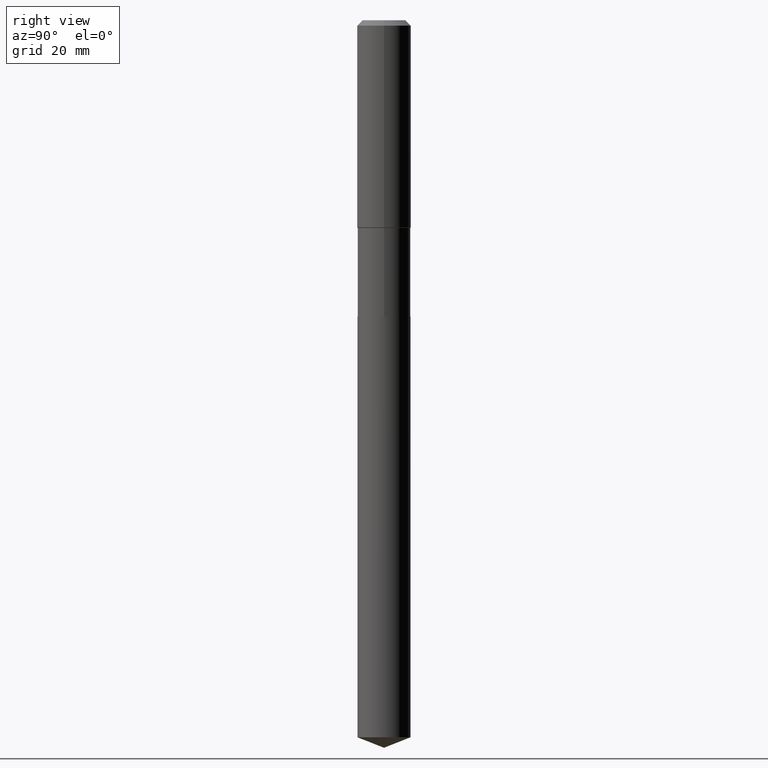
[diagram: clean part render]
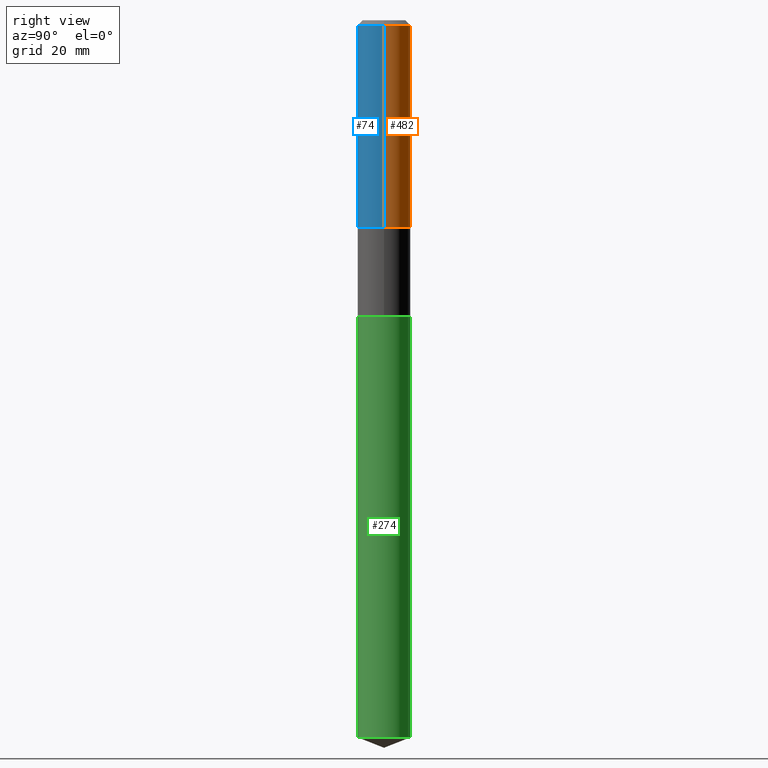
[diagram: same view with three faces highlighted in distinct colors, each labeled with its STEP entity id]
A machine part, right view with three faces highlighted in distinct colors.
Their STEP definitions:

[orange] entity #482 — the highlighted cylindrical surface (edge-blend (fillet) strip) has radius 5.9995 mm, axis along (-0, 0, 1).
#5 = DIRECTION ( 'NONE',  ( -2.445468806185136597E-29, 3.491481338843145583E-15, 1.000000000000000000 ) ) ;
#6 = VECTOR ( 'NONE', #352, 39.37007874015748143 ) ;
#15 = CIRCLE ( 'NONE', #155, 0.2362000000000000210 ) ;
#22 = VECTOR ( 'NONE', #143, 39.37007874015748143 ) ;
#52 = EDGE_CURVE ( 'NONE', #460, #81, #174, .T. ) ;
#54 = CARTESIAN_POINT ( 'NONE',  ( 0.000000000000000000, 0.000000000000000000, 0.000000000000000000 ) ) ;
#63 = ORIENTED_EDGE ( 'NONE', *, *, #52, .T. ) ;
#76 = ORIENTED_EDGE ( 'NONE', *, *, #219, .F. ) ;
#81 = VERTEX_POINT ( 'NONE', #156 ) ;
#93 = CARTESIAN_POINT ( 'NONE',  ( 1.155239464041866207E-30, -1.649375784469512845E-16, -0.04724000000000030952 ) ) ;
#143 = DIRECTION ( 'NONE',  ( -2.445468806185136877E-29, 3.491481338843145188E-15, 1.000000000000000000 ) ) ;
#155 = AXIS2_PLACEMENT_3D ( 'NONE', #93, #237, #307 ) ;
#156 = CARTESIAN_POINT ( 'NONE',  ( -0.2362000000000002431, -4.662577317607680515E-15, -1.816100000000000714 ) ) ;
#157 = ORIENTED_EDGE ( 'NONE', *, *, #288, .T. ) ;
#158 = ORIENTED_EDGE ( 'NONE', *, *, #414, .F. ) ;
#159 = FACE_OUTER_BOUND ( 'NONE', #248, .T. ) ;
#164 = DIRECTION ( 'NONE',  ( 1.000000000000000000, -6.982962677686265922E-15, 0.000000000000000000 ) ) ;
#171 = AXIS2_PLACEMENT_3D ( 'NONE', #54, #432, #392 ) ;
#174 = CIRCLE ( 'NONE', #385, 0.2362000000000002431 ) ;
#190 = CARTESIAN_POINT ( 'NONE',  ( 4.441215898912827916E-29, -6.340879259473039276E-15, -1.816100000000000714 ) ) ;
#192 = VERTEX_POINT ( 'NONE', #240 ) ;
#219 = EDGE_CURVE ( 'NONE', #192, #419, #15, .T. ) ;
#237 = DIRECTION ( 'NONE',  ( -2.445468806185136597E-29, 3.491481338843145583E-15, 1.000000000000000000 ) ) ;
#240 = CARTESIAN_POINT ( 'NONE',  ( 0.2362000000000000210, -1.814313362916447834E-15, -0.04724000000000030952 ) ) ;
#248 = EDGE_LOOP ( 'NONE', ( #63, #157, #76, #158 ) ) ;
#284 = CARTESIAN_POINT ( 'NONE',  ( -0.2362000000000001321, 1.678301941865357577E-15, -1.161852468318209457E-29 ) ) ;
#288 = EDGE_CURVE ( 'NONE', #81, #419, #481, .T. ) ;
#307 = DIRECTION ( 'NONE',  ( 1.000000000000000000, -6.982962677686267499E-15, 0.000000000000000000 ) ) ;
#331 = CARTESIAN_POINT ( 'NONE',  ( 0.2362000000000002431, -7.990255043942538167E-15, -1.816100000000000714 ) ) ;
#352 = DIRECTION ( 'NONE',  ( -2.445468806185136877E-29, 3.491481338843145188E-15, 1.000000000000000000 ) ) ;
#354 = CARTESIAN_POINT ( 'NONE',  ( 0.2362000000000001321, -1.649375784469497117E-15, 1.151752954443000789E-29 ) ) ;
#378 = CYLINDRICAL_SURFACE ( 'NONE', #171, 0.2362000000000001321 ) ;
#385 = AXIS2_PLACEMENT_3D ( 'NONE', #190, #5, #164 ) ;
#392 = DIRECTION ( 'NONE',  ( 1.000000000000000000, -6.982962677686266711E-15, 4.876176775795936353E-29 ) ) ;
#414 = EDGE_CURVE ( 'NONE', #460, #192, #450, .T. ) ;
#419 = VERTEX_POINT ( 'NONE', #474 ) ;
#432 = DIRECTION ( 'NONE',  ( -2.445468806185136597E-29, 3.491481338843145583E-15, 1.000000000000000000 ) ) ;
#450 = LINE ( 'NONE', #354, #6 ) ;
#460 = VERTEX_POINT ( 'NONE', #331 ) ;
#474 = CARTESIAN_POINT ( 'NONE',  ( -0.2362000000000000210, -1.574606477094637715E-15, -0.04724000000000030952 ) ) ;
#481 = LINE ( 'NONE', #284, #22 ) ;
#482 = ADVANCED_FACE ( 'NONE', ( #159 ), #378, .T. ) ;

[blue] entity #74 — the highlighted cylindrical surface (edge-blend (fillet) strip) has radius 5.9995 mm, axis along (-0, 0, 1).
#6 = VECTOR ( 'NONE', #352, 39.37007874015748143 ) ;
#14 = ORIENTED_EDGE ( 'NONE', *, *, #288, .F. ) ;
#22 = VECTOR ( 'NONE', #143, 39.37007874015748143 ) ;
#35 = EDGE_LOOP ( 'NONE', ( #14, #480, #413, #462 ) ) ;
#46 = DIRECTION ( 'NONE',  ( -2.445468806185136597E-29, 3.491481338843145583E-15, 1.000000000000000000 ) ) ;
#67 = CARTESIAN_POINT ( 'NONE',  ( 1.155239464041866207E-30, -1.649375784469512845E-16, -0.04724000000000030952 ) ) ;
#74 = ADVANCED_FACE ( 'NONE', ( #229 ), #124, .T. ) ;
#81 = VERTEX_POINT ( 'NONE', #156 ) ;
#84 = CARTESIAN_POINT ( 'NONE',  ( 0.000000000000000000, 0.000000000000000000, 0.000000000000000000 ) ) ;
#119 = CIRCLE ( 'NONE', #397, 0.2362000000000000210 ) ;
#122 = DIRECTION ( 'NONE',  ( 1.000000000000000000, -6.982962677686267499E-15, 0.000000000000000000 ) ) ;
#124 = CYLINDRICAL_SURFACE ( 'NONE', #464, 0.2362000000000001321 ) ;
#134 = EDGE_CURVE ( 'NONE', #81, #460, #370, .T. ) ;
#143 = DIRECTION ( 'NONE',  ( -2.445468806185136877E-29, 3.491481338843145188E-15, 1.000000000000000000 ) ) ;
#156 = CARTESIAN_POINT ( 'NONE',  ( -0.2362000000000002431, -4.662577317607680515E-15, -1.816100000000000714 ) ) ;
#170 = AXIS2_PLACEMENT_3D ( 'NONE', #260, #261, #425 ) ;
#192 = VERTEX_POINT ( 'NONE', #240 ) ;
#229 = FACE_OUTER_BOUND ( 'NONE', #35, .T. ) ;
#240 = CARTESIAN_POINT ( 'NONE',  ( 0.2362000000000000210, -1.814313362916447834E-15, -0.04724000000000030952 ) ) ;
#260 = CARTESIAN_POINT ( 'NONE',  ( 4.441215898912827916E-29, -6.340879259473039276E-15, -1.816100000000000714 ) ) ;
#261 = DIRECTION ( 'NONE',  ( -2.445468806185136597E-29, 3.491481338843145583E-15, 1.000000000000000000 ) ) ;
#284 = CARTESIAN_POINT ( 'NONE',  ( -0.2362000000000001321, 1.678301941865357577E-15, -1.161852468318209457E-29 ) ) ;
#288 = EDGE_CURVE ( 'NONE', #81, #419, #481, .T. ) ;
#290 = DIRECTION ( 'NONE',  ( -2.445468806185136597E-29, 3.491481338843145583E-15, 1.000000000000000000 ) ) ;
#331 = CARTESIAN_POINT ( 'NONE',  ( 0.2362000000000002431, -7.990255043942538167E-15, -1.816100000000000714 ) ) ;
#334 = DIRECTION ( 'NONE',  ( 1.000000000000000000, -6.982962677686266711E-15, 4.876176775795936353E-29 ) ) ;
#352 = DIRECTION ( 'NONE',  ( -2.445468806185136877E-29, 3.491481338843145188E-15, 1.000000000000000000 ) ) ;
#354 = CARTESIAN_POINT ( 'NONE',  ( 0.2362000000000001321, -1.649375784469497117E-15, 1.151752954443000789E-29 ) ) ;
#370 = CIRCLE ( 'NONE', #170, 0.2362000000000002431 ) ;
#397 = AXIS2_PLACEMENT_3D ( 'NONE', #67, #46, #122 ) ;
#413 = ORIENTED_EDGE ( 'NONE', *, *, #414, .T. ) ;
#414 = EDGE_CURVE ( 'NONE', #460, #192, #450, .T. ) ;
#419 = VERTEX_POINT ( 'NONE', #474 ) ;
#425 = DIRECTION ( 'NONE',  ( 1.000000000000000000, -6.982962677686265922E-15, 0.000000000000000000 ) ) ;
#450 = LINE ( 'NONE', #354, #6 ) ;
#454 = EDGE_CURVE ( 'NONE', #419, #192, #119, .T. ) ;
#460 = VERTEX_POINT ( 'NONE', #331 ) ;
#462 = ORIENTED_EDGE ( 'NONE', *, *, #454, .F. ) ;
#464 = AXIS2_PLACEMENT_3D ( 'NONE', #84, #290, #334 ) ;
#474 = CARTESIAN_POINT ( 'NONE',  ( -0.2362000000000000210, -1.574606477094637715E-15, -0.04724000000000030952 ) ) ;
#480 = ORIENTED_EDGE ( 'NONE', *, *, #134, .T. ) ;
#481 = LINE ( 'NONE', #284, #22 ) ;

[green] entity #274 — the highlighted cylindrical surface (edge-blend (fillet) strip) has radius 5.9004 mm, axis along (-0, 0, 1).
#19 = CARTESIAN_POINT ( 'NONE',  ( -1.622142230026456186E-15, -0.2323000000000090826, -2.598400000000000265 ) ) ;
#25 = FACE_OUTER_BOUND ( 'NONE', #225, .T. ) ;
#59 = LINE ( 'NONE', #350, #201 ) ;
#65 = DIRECTION ( 'NONE',  ( -6.982962677686265922E-15, -1.000000000000000000, 2.351999994545211393E-15 ) ) ;
#80 = VECTOR ( 'NONE', #400, 39.37007874015748143 ) ;
#89 = CARTESIAN_POINT ( 'NONE',  ( 1.650590775170866606E-15, 0.2322999999999908749, -2.598400000000001597 ) ) ;
#100 = VERTEX_POINT ( 'NONE', #89 ) ;
#108 = DIRECTION ( 'NONE',  ( -6.982962677686265922E-15, -1.000000000000000000, 2.351999994545211393E-15 ) ) ;
#117 = ORIENTED_EDGE ( 'NONE', *, *, #383, .T. ) ;
#145 = DIRECTION ( 'NONE',  ( -2.445449169258695004E-29, 3.491509460039474509E-15, 1.000000000000000000 ) ) ;
#148 = ORIENTED_EDGE ( 'NONE', *, *, #349, .T. ) ;
#175 = VERTEX_POINT ( 'NONE', #19 ) ;
#180 = CARTESIAN_POINT ( 'NONE',  ( 6.354306145991460877E-29, -9.072265110850034200E-15, -2.598400000000000709 ) ) ;
#186 = DIRECTION ( 'NONE',  ( -2.445449169258695004E-29, 3.491509460039474509E-15, 1.000000000000000000 ) ) ;
#193 = EDGE_CURVE ( 'NONE', #249, #175, #59, .T. ) ;
#201 = VECTOR ( 'NONE', #267, 39.37007874015748143 ) ;
#203 = AXIS2_PLACEMENT_3D ( 'NONE', #426, #263, #429 ) ;
#207 = CIRCLE ( 'NONE', #242, 0.2323000000000000065 ) ;
#217 = ORIENTED_EDGE ( 'NONE', *, *, #335, .F. ) ;
#225 = EDGE_LOOP ( 'NONE', ( #117, #148, #217, #485 ) ) ;
#235 = CARTESIAN_POINT ( 'NONE',  ( -1.622142230026366058E-15, -0.2323000000000219611, -6.286394596514649713 ) ) ;
#242 = AXIS2_PLACEMENT_3D ( 'NONE', #411, #186, #108 ) ;
#249 = VERTEX_POINT ( 'NONE', #235 ) ;
#263 = DIRECTION ( 'NONE',  ( -2.445449169258695004E-29, 3.491509460039474509E-15, 1.000000000000000000 ) ) ;
#267 = DIRECTION ( 'NONE',  ( -2.445449169258695004E-29, 3.491509460039474509E-15, 1.000000000000000000 ) ) ;
#274 = ADVANCED_FACE ( 'NONE', ( #25 ), #279, .T. ) ;
#279 = CYLINDRICAL_SURFACE ( 'NONE', #347, 0.2323000000000000065 ) ;
#335 = EDGE_CURVE ( 'NONE', #175, #100, #207, .T. ) ;
#339 = CARTESIAN_POINT ( 'NONE',  ( 1.650590775170866606E-15, 0.2322999999999781073, -6.286394596514651489 ) ) ;
#347 = AXIS2_PLACEMENT_3D ( 'NONE', #180, #145, #65 ) ;
#349 = EDGE_CURVE ( 'NONE', #489, #100, #416, .T. ) ;
#350 = CARTESIAN_POINT ( 'NONE',  ( -1.622142230026456186E-15, -0.2323000000000090826, -2.598400000000000265 ) ) ;
#383 = EDGE_CURVE ( 'NONE', #249, #489, #420, .T. ) ;
#400 = DIRECTION ( 'NONE',  ( -2.445449169258695004E-29, 3.491509460039474509E-15, 1.000000000000000000 ) ) ;
#411 = CARTESIAN_POINT ( 'NONE',  ( 6.354306145991460877E-29, -9.072265110850034200E-15, -2.598400000000000709 ) ) ;
#416 = LINE ( 'NONE', #445, #80 ) ;
#420 = CIRCLE ( 'NONE', #203, 0.2323000000000000065 ) ;
#426 = CARTESIAN_POINT ( 'NONE',  ( 1.537310946826876849E-28, -2.194893313315539797E-14, -6.286394596514650601 ) ) ;
#429 = DIRECTION ( 'NONE',  ( -6.982962677686265922E-15, -1.000000000000000000, 4.703999989090422785E-15 ) ) ;
#445 = CARTESIAN_POINT ( 'NONE',  ( 1.650590775170776084E-15, 0.2322999999999909304, -2.598400000000001597 ) ) ;
#485 = ORIENTED_EDGE ( 'NONE', *, *, #193, .F. ) ;
#489 = VERTEX_POINT ( 'NONE', #339 ) ;